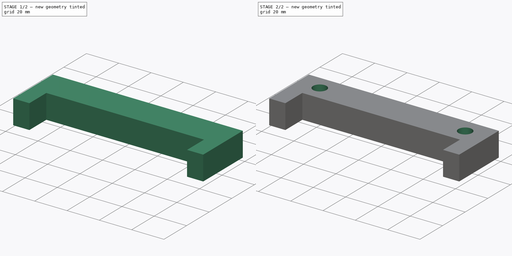
[diagram: build sequence overview — one tinted view per stage of 2, left to right]
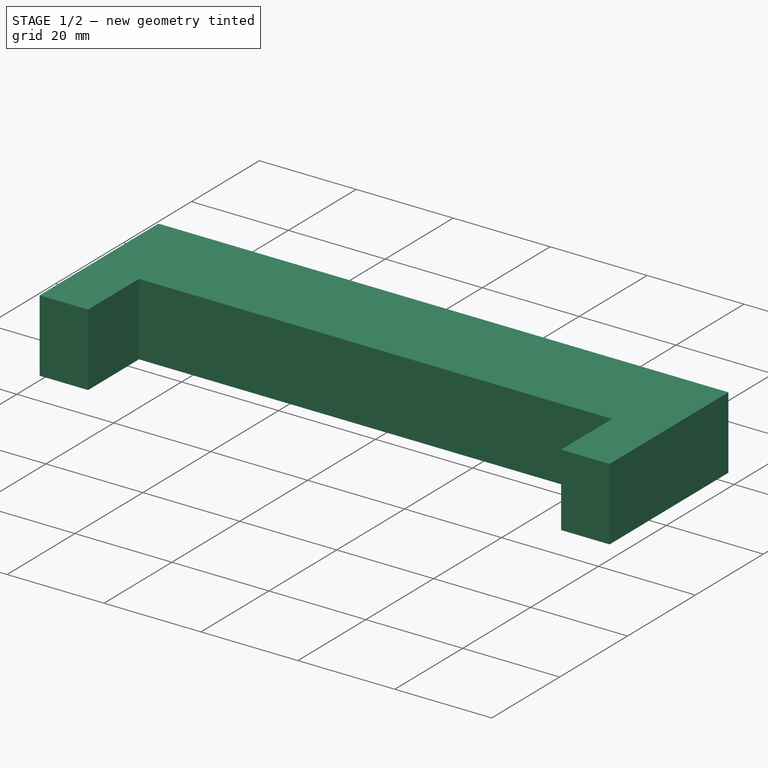
[diagram: stage 1 of 2 — iso view after this stage's code; geometry added in this stage tinted green]
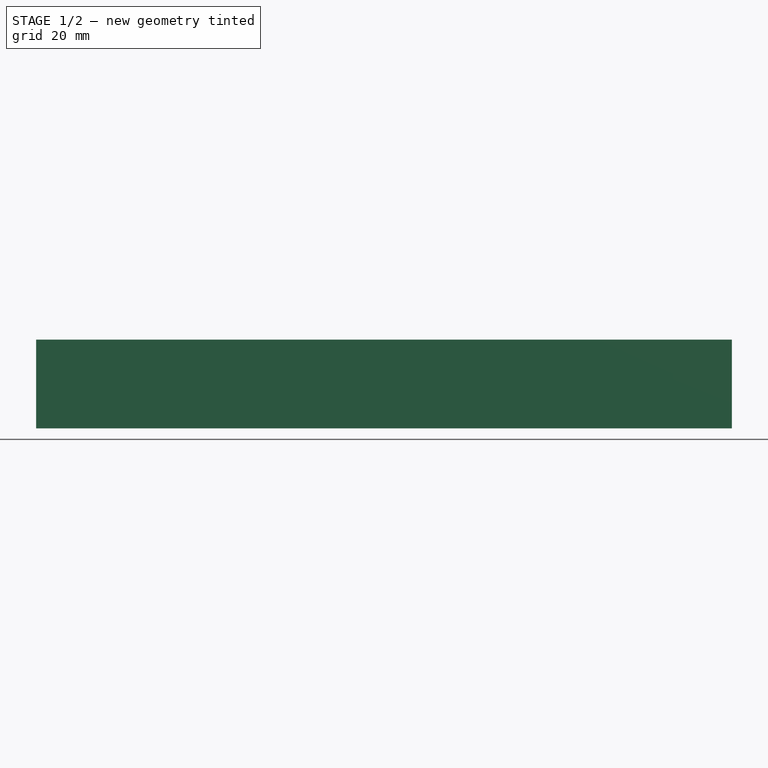
[diagram: stage 1 of 2 — front view after this stage's code; geometry added in this stage tinted green]
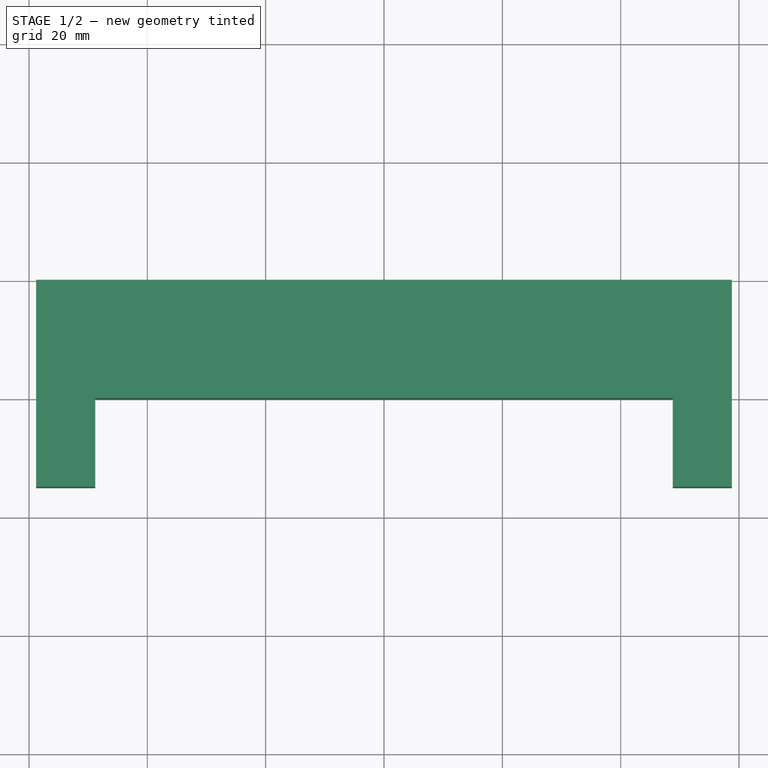
[diagram: stage 1 of 2 — top view after this stage's code; geometry added in this stage tinted green]
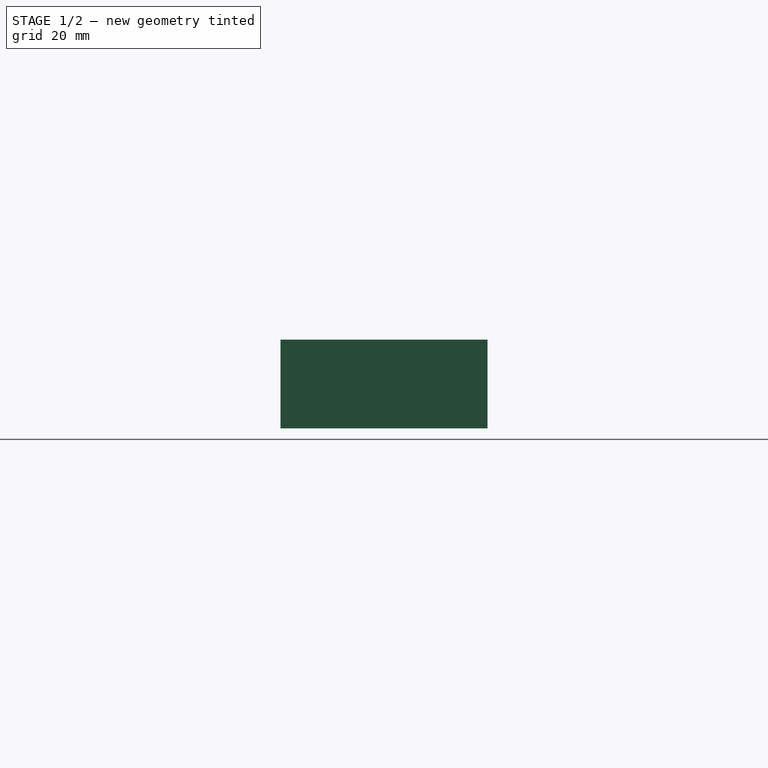
[diagram: stage 1 of 2 — right view after this stage's code; geometry added in this stage tinted green]
FCSTD DOCUMENT  (FreeCAD 0.15R4606 (Git))
Label: battery_holder
License: All rights reserved
LicenseURL: http://en.wikipedia.org/wiki/All_rights_reserved
objects: Sketcher::SketchObject×2, PartDesign::Pad×1, PartDesign::Pocket×1
note: 6 computed .brp shape members not serialized (recipe doc carries the construction recipe); baked Part::Feature solids carry a one-line shape summary decoded from their .brp

FEATURE [Sketcher::SketchObject] Sketch
  sketch-geometry (8):
    g0: LineSegment StartX=-58.8 StartY=0 StartZ=0 EndX=-58.8 EndY=-35 EndZ=0
    g1: LineSegment StartX=-58.8 StartY=-35 StartZ=0 EndX=-48.8 EndY=-35 EndZ=0
    g2: LineSegment StartX=-48.8 StartY=-35 StartZ=0 EndX=-48.8 EndY=-20 EndZ=0
    g3: LineSegment StartX=-48.8 StartY=-20 StartZ=0 EndX=48.8 EndY=-20 EndZ=0
    g4: LineSegment StartX=48.8 StartY=-20 StartZ=0 EndX=48.8 EndY=-35 EndZ=0
    g5: LineSegment StartX=48.8 StartY=-35 StartZ=0 EndX=58.8 EndY=-35 EndZ=0
    g6: LineSegment StartX=58.8 StartY=-35 StartZ=0 EndX=58.8 EndY=0 EndZ=0
    g7: LineSegment StartX=58.8 StartY=0 StartZ=0 EndX=-58.8 EndY=0 EndZ=0
  constraints (24):
    c: Coincident(g0,g1)
    c: Horizontal(g1)
    c: Coincident(g1,g2)
    c: Vertical(g2)
    c: Coincident(g2,g3)
    c: Horizontal(g3)
    c: Coincident(g3,g4)
    c: Coincident(g4,g5)
    c: Coincident(g5,g6)
    c: Vertical(g6)
    c: Coincident(g6,g7)
    c: Horizontal(g7)
    c: Coincident(g0,g7)
    c: Vertical(g0)
    c: Vertical(g4)
    c: Horizontal(g5)
    c: PointOnObject(g0,g-1)
    c: Symmetric(g0,g6,g-2)
    c: Symmetric(g2,g3,g-2)
    c: Distance(g3) = 97.6
    c: Distance(g1) = 10
    c: Distance(g0,g0) = 35
    c: Distance(g6,g5) = 35
    c: DistanceY(g-1,g2) = -20
FEATURE [PartDesign::Pad] Pad
  Length = 15
  Length2 = 100
  Sketch = -> Sketch
  Type = 0
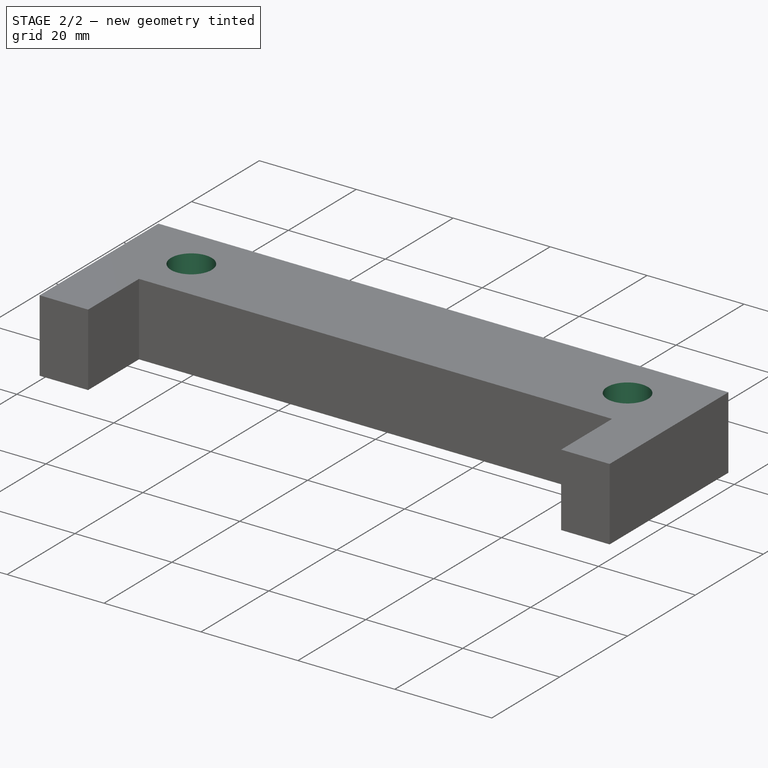
[diagram: stage 2 of 2 — iso view after this stage's code; geometry added in this stage tinted green]
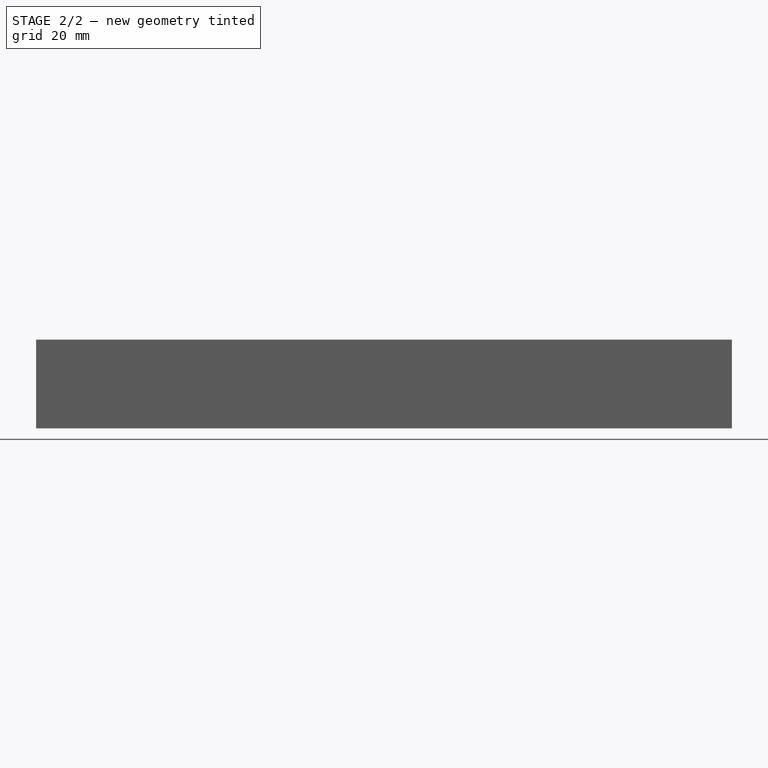
[diagram: stage 2 of 2 — front view after this stage's code; geometry added in this stage tinted green]
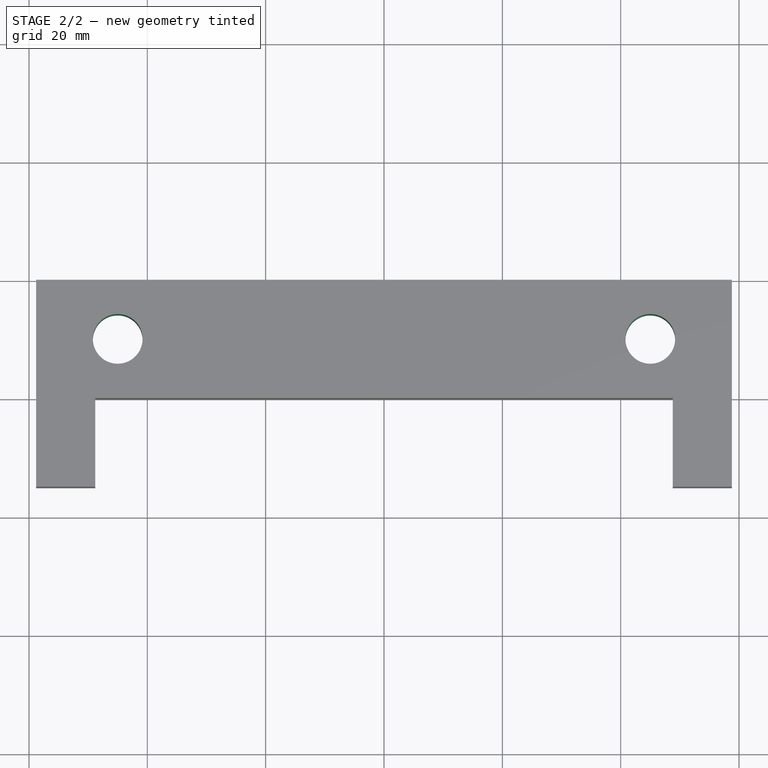
[diagram: stage 2 of 2 — top view after this stage's code; geometry added in this stage tinted green]
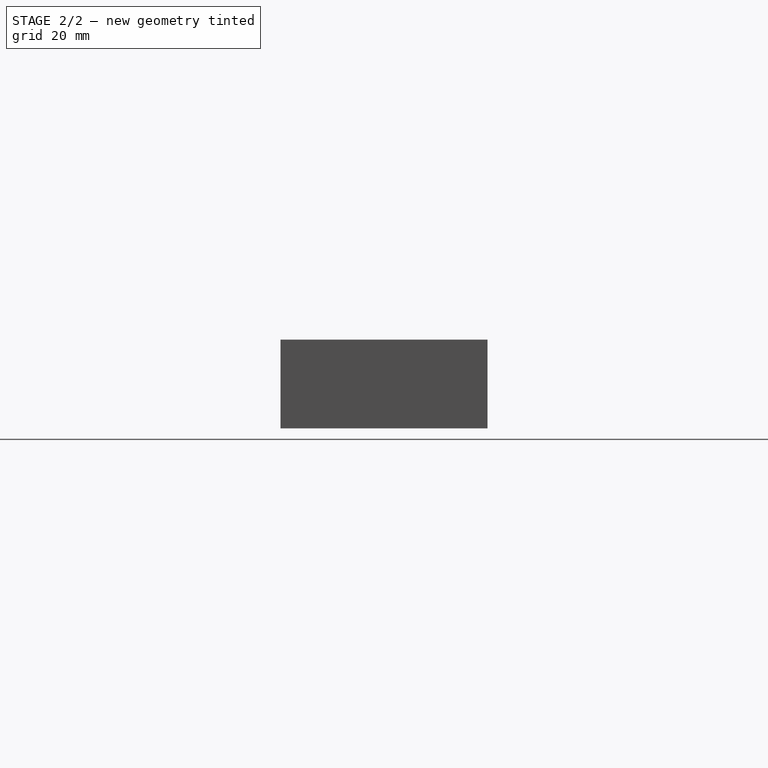
[diagram: stage 2 of 2 — right view after this stage's code; geometry added in this stage tinted green]
FEATURE [Sketcher::SketchObject] Sketch001
  Placement = pos=(0,0,15) rot=(0,0,1;0rad)
  Support = -> Pad [Face10]
  sketch-geometry (2):
    g0: Circle CenterX=-45 CenterY=-10 CenterZ=0 NormalX=0 NormalY=0 NormalZ=1 Radius=4.2
    g1: Circle CenterX=45 CenterY=-10 CenterZ=0 NormalX=0 NormalY=0 NormalZ=1 Radius=4.2
  constraints (5):
    c: Radius(g0) = 4.2
    c: Equal(g0,g1)
    c: Symmetric(g0,g1,g-2)
    c: DistanceY(g-1,g0) = -10
    c: DistanceX(g-1,g0) = -45
FEATURE [PartDesign::Pocket] Pocket
  Length = 54
  Sketch = -> Sketch001
  Type = 0
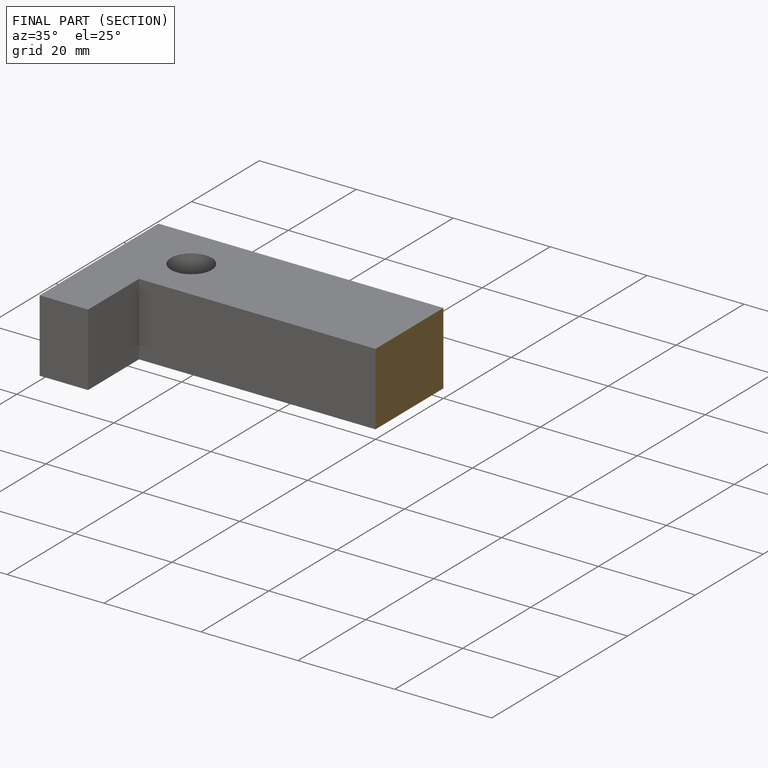
[diagram: finished part — half-section view (interior)]
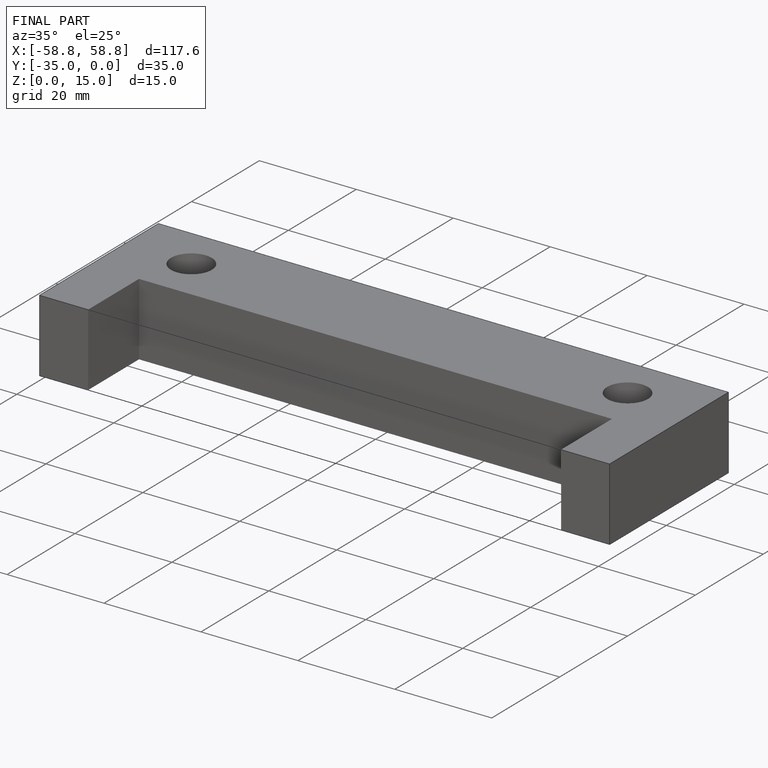
[diagram: finished part — iso view with bounding-box wireframe]
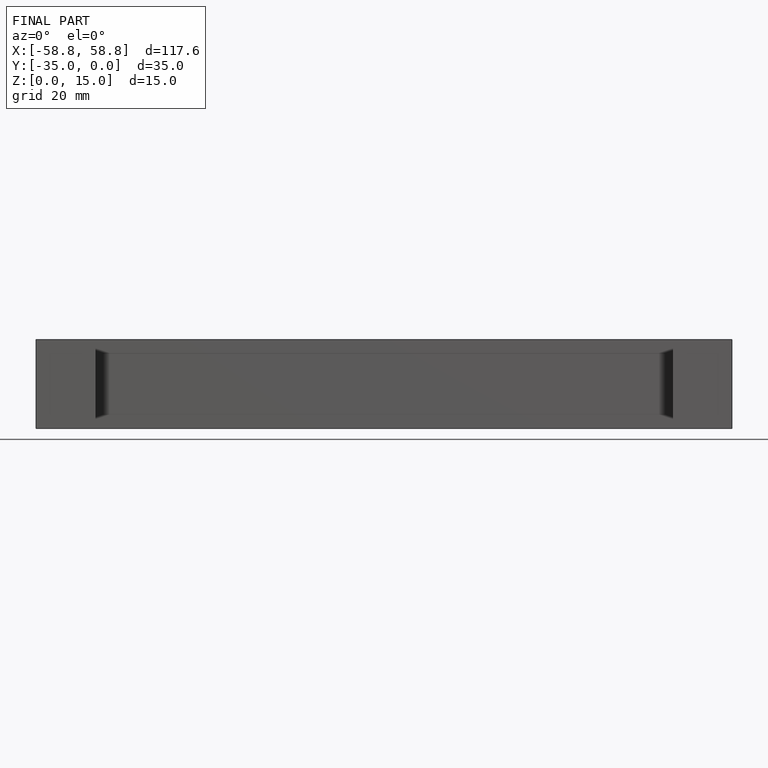
[diagram: finished part — front view with bounding-box wireframe]
